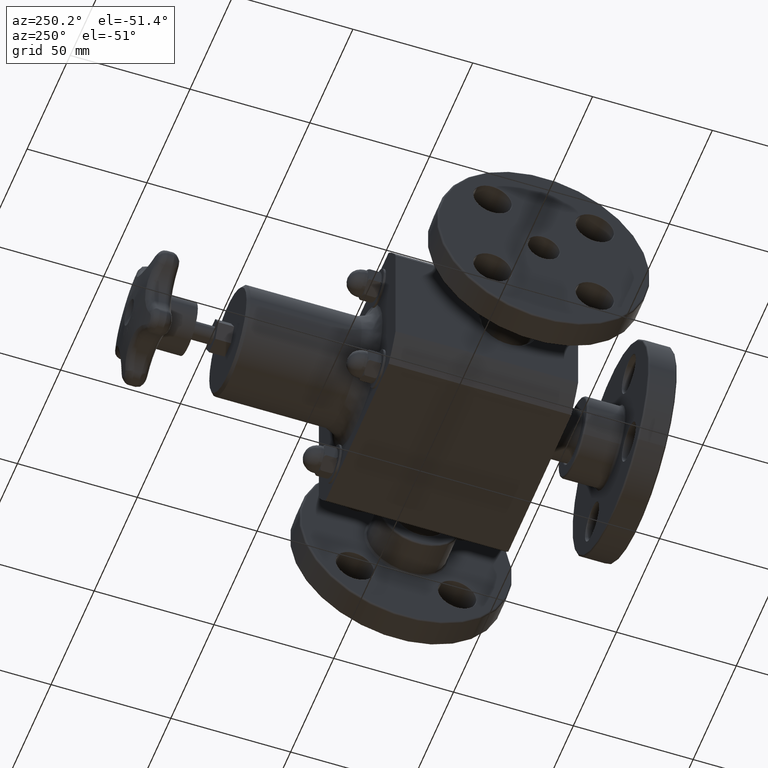
[diagram: clean part render]
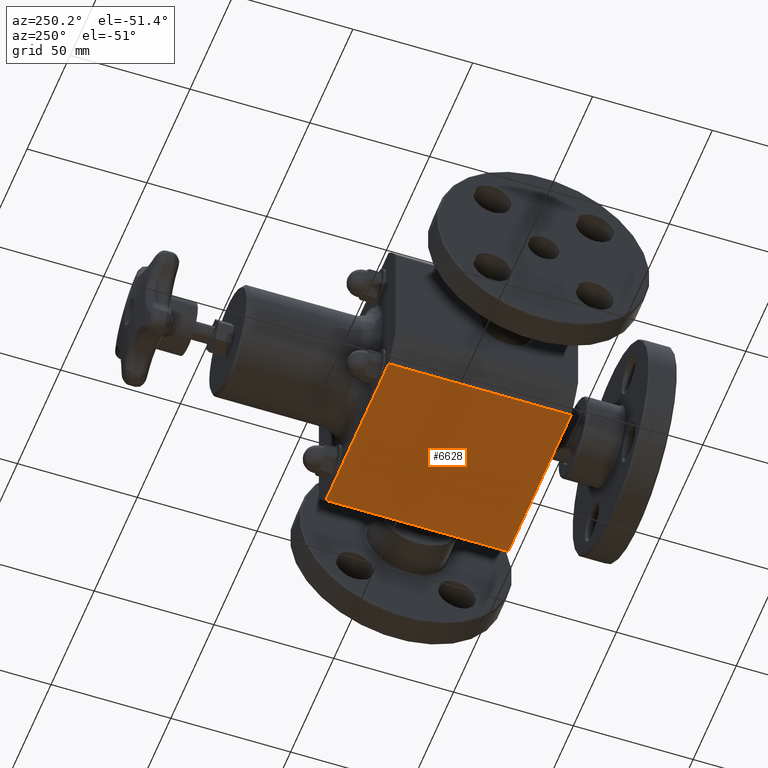
[diagram: same view with one face highlighted and labeled with its STEP entity id]
A machine part, auxiliary view. The second image highlights one B-rep face of the part: STEP entity #6628.
In plain terms, the highlighted planar face has unit normal (0, 0, -1).
Its self-contained STEP definition (entity closure, byte-faithful):
#6170=CARTESIAN_POINT('',(1.435106703349963,3.000000000000001,-1.375000000000001));
#6171=VERTEX_POINT('',#6170);
#6179=CARTESIAN_POINT('',(-1.435106703349966,3.000000000000000,-1.375000000000000));
#6180=VERTEX_POINT('',#6179);
#6181=CARTESIAN_POINT('',(-1.435106703349966,3.000000000000000,-1.375000000000000));
#6182=DIRECTION('',(1.0,0.0,0.0));
#6183=VECTOR('',#6182,2.870213406699928);
#6184=LINE('',#6181,#6183);
#6185=EDGE_CURVE('',#6180,#6171,#6184,.T.);
#6510=CARTESIAN_POINT('',(-1.435106703349964,-3.227068E-016,-1.375000000000000));
#6511=VERTEX_POINT('',#6510);
#6519=CARTESIAN_POINT('',(1.435106703349963,1.111253E-015,-1.375000000000000));
#6520=VERTEX_POINT('',#6519);
#6521=CARTESIAN_POINT('',(1.435106703349963,1.111253E-015,-1.375000000000000));
#6522=DIRECTION('',(-1.0,0.0,0.0));
#6523=VECTOR('',#6522,2.870213406699928);
#6524=LINE('',#6521,#6523);
#6525=EDGE_CURVE('',#6520,#6511,#6524,.T.);
#6600=CARTESIAN_POINT('',(-1.435106703349964,-3.227068E-016,-1.375000000000000));
#6601=DIRECTION('',(0.0,1.0,0.0));
#6602=VECTOR('',#6601,3.0);
#6603=LINE('',#6600,#6602);
#6604=EDGE_CURVE('',#6511,#6180,#6603,.T.);
#6612=CARTESIAN_POINT('',(-1.435106703349964,-3.227068E-016,-1.375000000000000));
#6613=DIRECTION('',(0.0,0.0,-1.0));
#6614=DIRECTION('',(-1.0,0.0,0.0));
#6615=AXIS2_PLACEMENT_3D('',#6612,#6613,#6614);
#6616=PLANE('',#6615);
#6617=CARTESIAN_POINT('',(1.435106703349963,1.111253E-015,-1.375000000000000));
#6618=DIRECTION('',(0.0,1.0,0.0));
#6619=VECTOR('',#6618,3.0);
#6620=LINE('',#6617,#6619);
#6621=EDGE_CURVE('',#6520,#6171,#6620,.T.);
#6622=ORIENTED_EDGE('',*,*,#6621,.F.);
#6623=ORIENTED_EDGE('',*,*,#6525,.T.);
#6624=ORIENTED_EDGE('',*,*,#6604,.T.);
#6625=ORIENTED_EDGE('',*,*,#6185,.T.);
#6626=EDGE_LOOP('',(#6622,#6623,#6624,#6625));
#6627=FACE_OUTER_BOUND('',#6626,.T.);
#6628=ADVANCED_FACE('',(#6627),#6616,.T.);